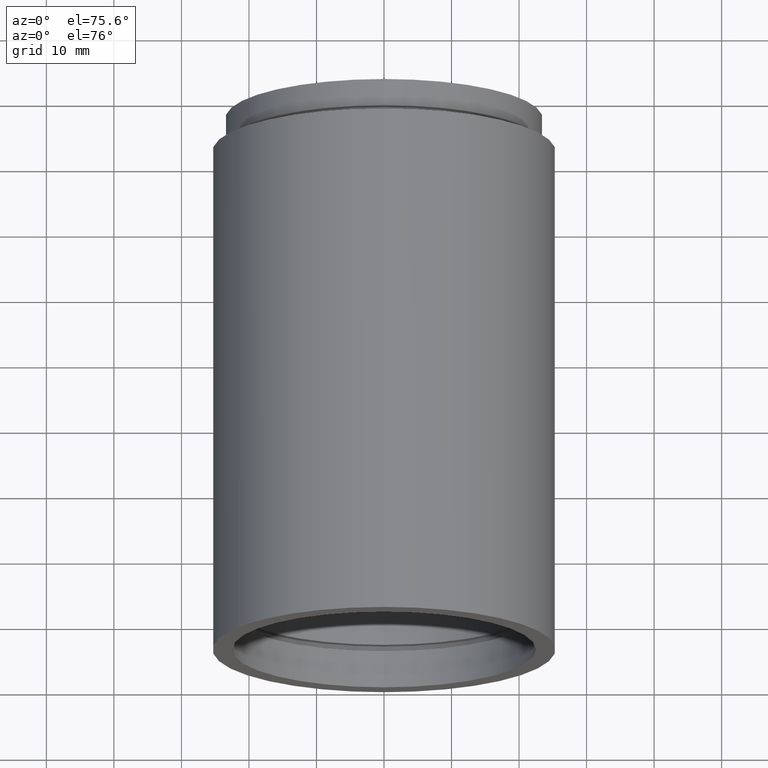
[diagram: clean part render]
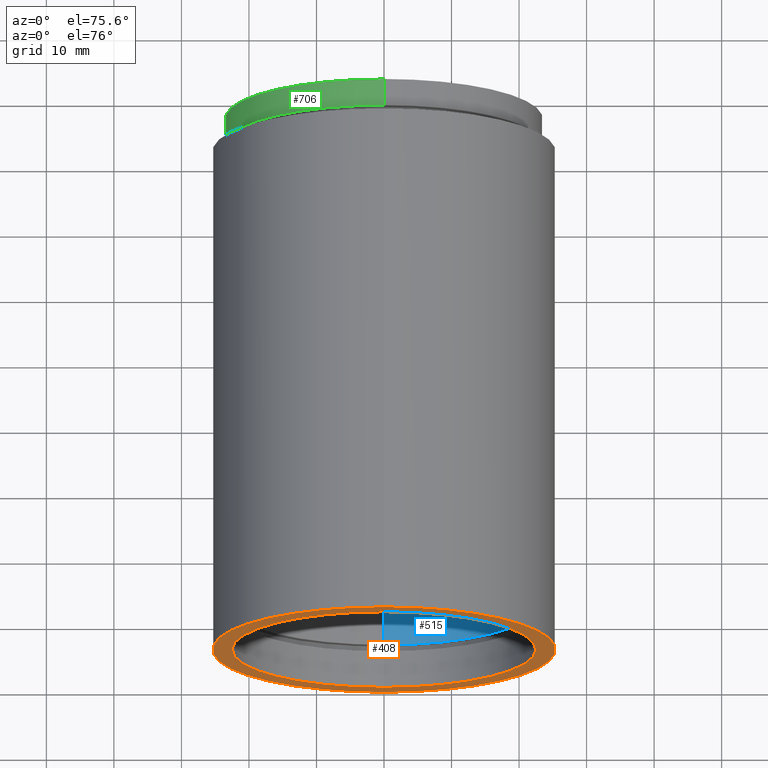
[diagram: same view with three faces highlighted in distinct colors, each labeled with its STEP entity id]
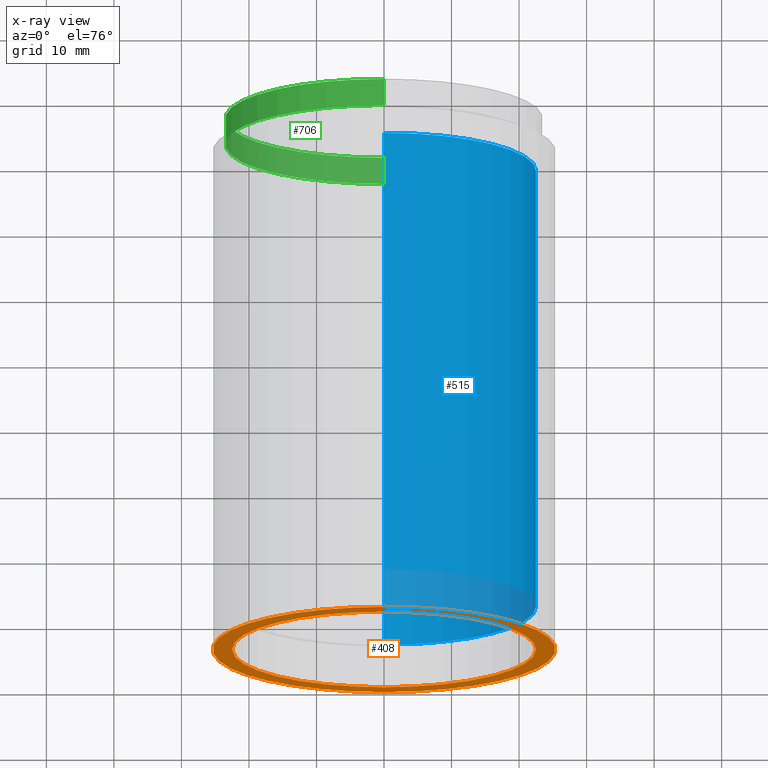
[diagram: x-ray of the same camera — body ghosted, the three highlighted faces saturated]
A machine part, auxiliary view with three faces highlighted in distinct colors.
The next image is the same camera in x-ray (body ghosted, the three faces saturated) — at least one of them is partly hidden behind the body in this view.
Their STEP definitions:

[orange] entity #408 — the highlighted planar face has unit normal (-0, 1, 0).
#32 = EDGE_CURVE ( 'NONE', #298, #317, #800, .T. ) ;
#48 = PLANE ( 'NONE',  #593 ) ;
#110 = DIRECTION ( 'NONE',  ( 0.0000000000000000000, 0.0000000000000000000, 1.000000000000000000 ) ) ;
#134 = DIRECTION ( 'NONE',  ( -0.0000000000000000000, 1.000000000000000000, -0.0000000000000000000 ) ) ;
#159 = VERTEX_POINT ( 'NONE', #283 ) ;
#176 = FACE_OUTER_BOUND ( 'NONE', #196, .T. ) ;
#182 = CARTESIAN_POINT ( 'NONE',  ( 25.40000000000002000, -1.460226537307042600E-014, 0.0000000000000000000 ) ) ;
#196 = EDGE_LOOP ( 'NONE', ( #390, #772 ) ) ;
#241 = CARTESIAN_POINT ( 'NONE',  ( 2.755455298081547100E-015, -2.775557561562891400E-014, -22.50000000000002100 ) ) ;
#242 = AXIS2_PLACEMENT_3D ( 'NONE', #382, #693, #628 ) ;
#246 = DIRECTION ( 'NONE',  ( 0.0000000000000000000, 0.0000000000000000000, 1.000000000000000000 ) ) ;
#260 = CIRCLE ( 'NONE', #777, 22.50000000000002100 ) ;
#283 = CARTESIAN_POINT ( 'NONE',  ( 0.0000000000000000000, -2.775557561562891400E-014, 22.50000000000002100 ) ) ;
#294 = CARTESIAN_POINT ( 'NONE',  ( 0.0000000000000000000, -2.775557561562891400E-014, 0.0000000000000000000 ) ) ;
#298 = VERTEX_POINT ( 'NONE', #473 ) ;
#300 = DIRECTION ( 'NONE',  ( -0.0000000000000000000, 1.000000000000000000, -0.0000000000000000000 ) ) ;
#304 = FACE_BOUND ( 'NONE', #493, .T. ) ;
#307 = AXIS2_PLACEMENT_3D ( 'NONE', #294, #300, #418 ) ;
#317 = VERTEX_POINT ( 'NONE', #464 ) ;
#366 = EDGE_CURVE ( 'NONE', #159, #511, #699, .T. ) ;
#382 = CARTESIAN_POINT ( 'NONE',  ( 0.0000000000000000000, -2.775557561562891400E-014, 0.0000000000000000000 ) ) ;
#389 = EDGE_CURVE ( 'NONE', #511, #159, #260, .T. ) ;
#390 = ORIENTED_EDGE ( 'NONE', *, *, #32, .F. ) ;
#408 = ADVANCED_FACE ( 'NONE', ( #176, #304 ), #48, .F. ) ;
#418 = DIRECTION ( 'NONE',  ( 0.0000000000000000000, 0.0000000000000000000, 1.000000000000000000 ) ) ;
#425 = CARTESIAN_POINT ( 'NONE',  ( 0.0000000000000000000, -2.775557561562891400E-014, 0.0000000000000000000 ) ) ;
#464 = CARTESIAN_POINT ( 'NONE',  ( 3.110602869834279200E-015, -2.775557561562891400E-014, -25.40000000000002000 ) ) ;
#473 = CARTESIAN_POINT ( 'NONE',  ( 0.0000000000000000000, -2.775557561562891400E-014, 25.40000000000002000 ) ) ;
#482 = DIRECTION ( 'NONE',  ( -0.0000000000000000000, 1.000000000000000000, 0.0000000000000000000 ) ) ;
#493 = EDGE_LOOP ( 'NONE', ( #790, #595 ) ) ;
#496 = CARTESIAN_POINT ( 'NONE',  ( 0.0000000000000000000, -2.775557561562891400E-014, 0.0000000000000000000 ) ) ;
#511 = VERTEX_POINT ( 'NONE', #241 ) ;
#524 = EDGE_CURVE ( 'NONE', #317, #298, #537, .T. ) ;
#537 = CIRCLE ( 'NONE', #242, 25.40000000000002000 ) ;
#593 = AXIS2_PLACEMENT_3D ( 'NONE', #182, #482, #110 ) ;
#595 = ORIENTED_EDGE ( 'NONE', *, *, #389, .T. ) ;
#628 = DIRECTION ( 'NONE',  ( 0.0000000000000000000, 0.0000000000000000000, 1.000000000000000000 ) ) ;
#662 = DIRECTION ( 'NONE',  ( 0.0000000000000000000, 0.0000000000000000000, 1.000000000000000000 ) ) ;
#693 = DIRECTION ( 'NONE',  ( -0.0000000000000000000, 1.000000000000000000, -0.0000000000000000000 ) ) ;
#699 = CIRCLE ( 'NONE', #307, 22.50000000000002100 ) ;
#772 = ORIENTED_EDGE ( 'NONE', *, *, #524, .F. ) ;
#777 = AXIS2_PLACEMENT_3D ( 'NONE', #425, #791, #662 ) ;
#784 = AXIS2_PLACEMENT_3D ( 'NONE', #496, #134, #246 ) ;
#790 = ORIENTED_EDGE ( 'NONE', *, *, #366, .T. ) ;
#791 = DIRECTION ( 'NONE',  ( -0.0000000000000000000, 1.000000000000000000, -0.0000000000000000000 ) ) ;
#800 = CIRCLE ( 'NONE', #784, 25.40000000000002000 ) ;

[blue] entity #515 — the highlighted cylindrical surface (partial cylindrical patch) has radius 22.5 mm, axis along (-0, 1, -0).
#21 = CARTESIAN_POINT ( 'NONE',  ( 0.0000000000000000000, 6.499999999999977800, 0.0000000000000000000 ) ) ;
#47 = ORIENTED_EDGE ( 'NONE', *, *, #146, .T. ) ;
#57 = DIRECTION ( 'NONE',  ( 0.0000000000000000000, 0.0000000000000000000, 1.000000000000000000 ) ) ;
#70 = EDGE_CURVE ( 'NONE', #232, #357, #657, .T. ) ;
#88 = DIRECTION ( 'NONE',  ( 0.0000000000000000000, 0.0000000000000000000, 1.000000000000000000 ) ) ;
#90 = LINE ( 'NONE', #520, #509 ) ;
#101 = ORIENTED_EDGE ( 'NONE', *, *, #70, .F. ) ;
#146 = EDGE_CURVE ( 'NONE', #432, #438, #305, .T. ) ;
#177 = CARTESIAN_POINT ( 'NONE',  ( 2.755455298081547100E-015, 6.499999999999977800, -22.50000000000002100 ) ) ;
#186 = EDGE_CURVE ( 'NONE', #357, #438, #90, .T. ) ;
#204 = AXIS2_PLACEMENT_3D ( 'NONE', #434, #611, #57 ) ;
#232 = VERTEX_POINT ( 'NONE', #527 ) ;
#305 = CIRCLE ( 'NONE', #585, 22.50000000000002100 ) ;
#309 = ORIENTED_EDGE ( 'NONE', *, *, #186, .F. ) ;
#318 = ORIENTED_EDGE ( 'NONE', *, *, #610, .T. ) ;
#328 = AXIS2_PLACEMENT_3D ( 'NONE', #21, #704, #338 ) ;
#338 = DIRECTION ( 'NONE',  ( 0.0000000000000000000, 0.0000000000000000000, 1.000000000000000000 ) ) ;
#357 = VERTEX_POINT ( 'NONE', #177 ) ;
#361 = LINE ( 'NONE', #684, #696 ) ;
#362 = FACE_OUTER_BOUND ( 'NONE', #630, .T. ) ;
#398 = CYLINDRICAL_SURFACE ( 'NONE', #204, 22.50000000000002100 ) ;
#409 = DIRECTION ( 'NONE',  ( -0.0000000000000000000, 1.000000000000000000, -0.0000000000000000000 ) ) ;
#432 = VERTEX_POINT ( 'NONE', #785 ) ;
#434 = CARTESIAN_POINT ( 'NONE',  ( 0.0000000000000000000, 161.3761669434274500, 0.0000000000000000000 ) ) ;
#438 = VERTEX_POINT ( 'NONE', #478 ) ;
#449 = CARTESIAN_POINT ( 'NONE',  ( 0.0000000000000000000, 73.19999999999998900, 0.0000000000000000000 ) ) ;
#478 = CARTESIAN_POINT ( 'NONE',  ( 2.755455298081547100E-015, 73.19999999999998900, -22.50000000000002100 ) ) ;
#497 = DIRECTION ( 'NONE',  ( -0.0000000000000000000, 1.000000000000000000, -0.0000000000000000000 ) ) ;
#509 = VECTOR ( 'NONE', #409, 1000.000000000000000 ) ;
#515 = ADVANCED_FACE ( 'NONE', ( #362 ), #398, .F. ) ;
#520 = CARTESIAN_POINT ( 'NONE',  ( 2.755455298081547100E-015, 161.3761669434274500, -22.50000000000002100 ) ) ;
#527 = CARTESIAN_POINT ( 'NONE',  ( 0.0000000000000000000, 6.499999999999977800, 22.50000000000002100 ) ) ;
#574 = DIRECTION ( 'NONE',  ( -0.0000000000000000000, 1.000000000000000000, -0.0000000000000000000 ) ) ;
#585 = AXIS2_PLACEMENT_3D ( 'NONE', #449, #574, #88 ) ;
#610 = EDGE_CURVE ( 'NONE', #232, #432, #361, .T. ) ;
#611 = DIRECTION ( 'NONE',  ( -0.0000000000000000000, 1.000000000000000000, -0.0000000000000000000 ) ) ;
#630 = EDGE_LOOP ( 'NONE', ( #309, #101, #318, #47 ) ) ;
#657 = CIRCLE ( 'NONE', #328, 22.50000000000002100 ) ;
#684 = CARTESIAN_POINT ( 'NONE',  ( 0.0000000000000000000, 161.3761669434274500, 22.50000000000002100 ) ) ;
#696 = VECTOR ( 'NONE', #497, 1000.000000000000000 ) ;
#704 = DIRECTION ( 'NONE',  ( -0.0000000000000000000, 1.000000000000000000, -0.0000000000000000000 ) ) ;
#785 = CARTESIAN_POINT ( 'NONE',  ( 0.0000000000000000000, 73.19999999999998900, 22.50000000000002100 ) ) ;

[green] entity #706 — the highlighted cylindrical surface (partial cylindrical patch) has radius 23.5 mm, axis along (-0, 1, -0).
#2 = EDGE_CURVE ( 'NONE', #404, #81, #217, .T. ) ;
#75 = CARTESIAN_POINT ( 'NONE',  ( 2.877919977996264100E-015, 161.3761669434274500, -23.49999999999986900 ) ) ;
#81 = VERTEX_POINT ( 'NONE', #199 ) ;
#114 = EDGE_CURVE ( 'NONE', #546, #81, #667, .T. ) ;
#118 = CIRCLE ( 'NONE', #351, 23.49999999999987200 ) ;
#137 = DIRECTION ( 'NONE',  ( 0.0000000000000000000, 0.0000000000000000000, 1.000000000000000000 ) ) ;
#148 = DIRECTION ( 'NONE',  ( 0.0000000000000000000, 0.0000000000000000000, 1.000000000000000000 ) ) ;
#158 = CARTESIAN_POINT ( 'NONE',  ( 0.0000000000000000000, 161.3761669434274500, 23.49999999999986900 ) ) ;
#167 = EDGE_CURVE ( 'NONE', #801, #404, #498, .T. ) ;
#181 = DIRECTION ( 'NONE',  ( -0.0000000000000000000, 1.000000000000000000, -0.0000000000000000000 ) ) ;
#199 = CARTESIAN_POINT ( 'NONE',  ( 0.0000000000000000000, 81.19999999999998900, 23.49999999999986500 ) ) ;
#217 = CIRCLE ( 'NONE', #494, 23.49999999999986500 ) ;
#229 = CARTESIAN_POINT ( 'NONE',  ( 2.877919977996263800E-015, 81.19999999999998900, -23.49999999999986500 ) ) ;
#249 = AXIS2_PLACEMENT_3D ( 'NONE', #455, #505, #148 ) ;
#251 = VECTOR ( 'NONE', #333, 1000.000000000000000 ) ;
#263 = DIRECTION ( 'NONE',  ( -0.0000000000000000000, 1.000000000000000000, -0.0000000000000000000 ) ) ;
#333 = DIRECTION ( 'NONE',  ( -0.0000000000000000000, 1.000000000000000000, -0.0000000000000000000 ) ) ;
#351 = AXIS2_PLACEMENT_3D ( 'NONE', #600, #181, #661 ) ;
#365 = ORIENTED_EDGE ( 'NONE', *, *, #114, .T. ) ;
#404 = VERTEX_POINT ( 'NONE', #229 ) ;
#410 = EDGE_CURVE ( 'NONE', #801, #546, #118, .T. ) ;
#420 = FACE_OUTER_BOUND ( 'NONE', #545, .T. ) ;
#455 = CARTESIAN_POINT ( 'NONE',  ( 0.0000000000000000000, 161.3761669434274500, 0.0000000000000000000 ) ) ;
#481 = CYLINDRICAL_SURFACE ( 'NONE', #249, 23.49999999999986900 ) ;
#494 = AXIS2_PLACEMENT_3D ( 'NONE', #812, #551, #137 ) ;
#498 = LINE ( 'NONE', #75, #251 ) ;
#505 = DIRECTION ( 'NONE',  ( -0.0000000000000000000, 1.000000000000000000, -0.0000000000000000000 ) ) ;
#531 = ORIENTED_EDGE ( 'NONE', *, *, #167, .F. ) ;
#545 = EDGE_LOOP ( 'NONE', ( #531, #738, #365, #724 ) ) ;
#546 = VERTEX_POINT ( 'NONE', #743 ) ;
#551 = DIRECTION ( 'NONE',  ( -0.0000000000000000000, 1.000000000000000000, -0.0000000000000000000 ) ) ;
#600 = CARTESIAN_POINT ( 'NONE',  ( 0.0000000000000000000, 77.20000000000000300, 0.0000000000000000000 ) ) ;
#635 = CARTESIAN_POINT ( 'NONE',  ( 2.877919977996264900E-015, 77.20000000000000300, -23.49999999999987600 ) ) ;
#661 = DIRECTION ( 'NONE',  ( 0.0000000000000000000, 0.0000000000000000000, 1.000000000000000000 ) ) ;
#667 = LINE ( 'NONE', #158, #727 ) ;
#706 = ADVANCED_FACE ( 'NONE', ( #420 ), #481, .T. ) ;
#724 = ORIENTED_EDGE ( 'NONE', *, *, #2, .F. ) ;
#727 = VECTOR ( 'NONE', #263, 1000.000000000000000 ) ;
#738 = ORIENTED_EDGE ( 'NONE', *, *, #410, .T. ) ;
#743 = CARTESIAN_POINT ( 'NONE',  ( 0.0000000000000000000, 77.20000000000000300, 23.49999999999987200 ) ) ;
#801 = VERTEX_POINT ( 'NONE', #635 ) ;
#812 = CARTESIAN_POINT ( 'NONE',  ( 0.0000000000000000000, 81.19999999999998900, 0.0000000000000000000 ) ) ;